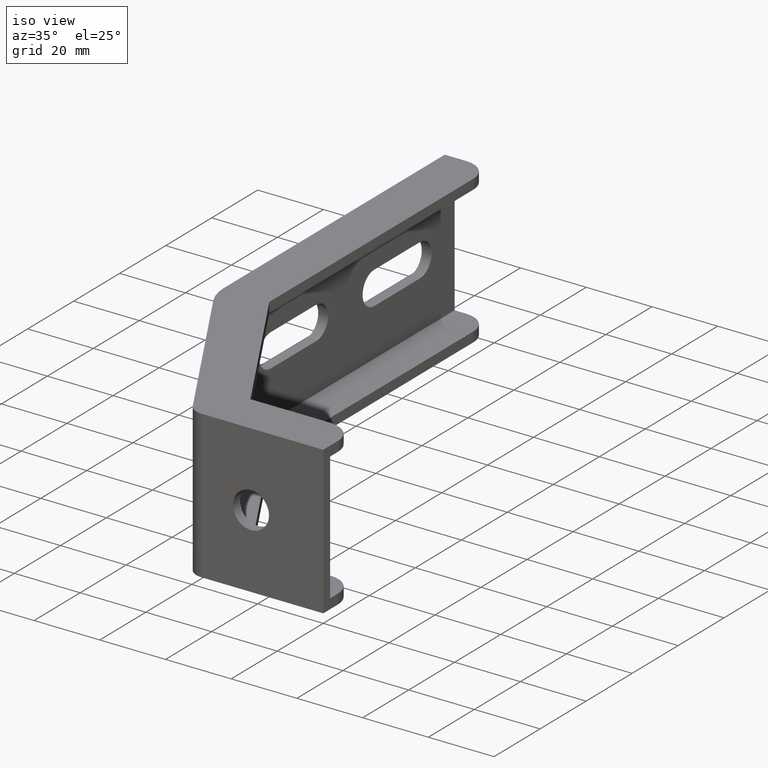
[diagram: clean part render]
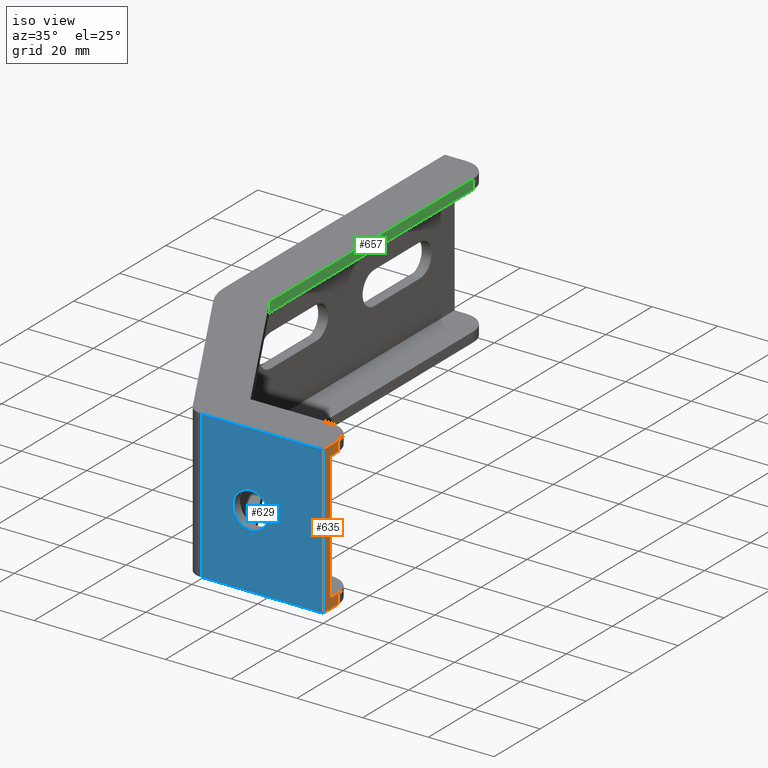
[diagram: same view with three faces highlighted in distinct colors, each labeled with its STEP entity id]
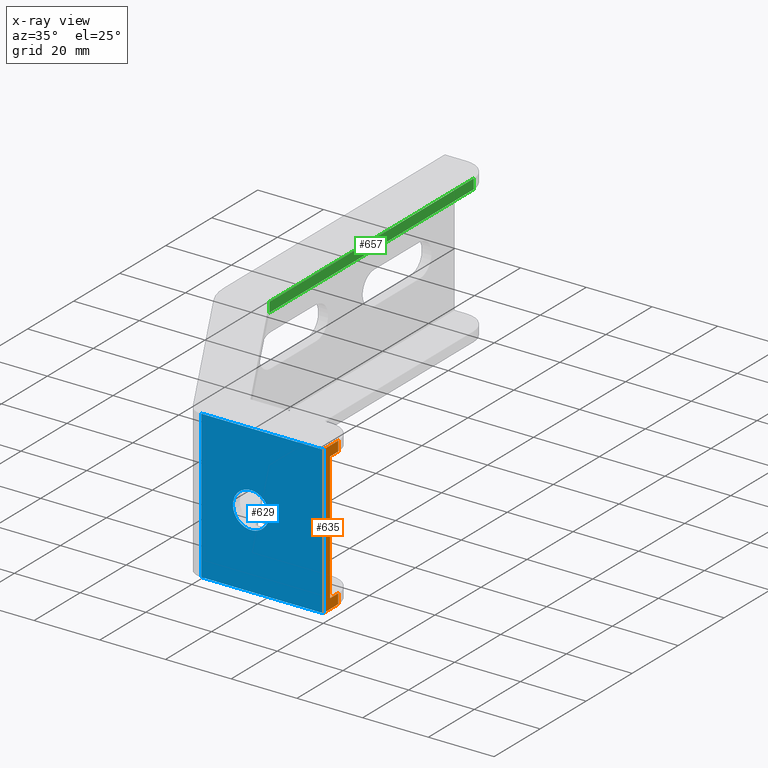
[diagram: x-ray of the same camera — body ghosted, the three highlighted faces saturated]
A machine part, iso view with three faces highlighted in distinct colors.
The next image is the same camera in x-ray (body ghosted, the three faces saturated) — at least one of them is partly hidden behind the body in this view.
Their STEP definitions:

[orange] entity #635 — the highlighted planar face has unit normal (1, 0, 0).
#26=PLANE('',#684);
#51=FACE_OUTER_BOUND('',#87,.T.);
#87=EDGE_LOOP('',(#486,#487,#488,#489,#490,#491,#492,#493));
#120=LINE('',#914,#190);
#128=LINE('',#937,#198);
#137=LINE('',#966,#207);
#144=LINE('',#984,#214);
#145=LINE('',#987,#215);
#146=LINE('',#989,#216);
#147=LINE('',#991,#217);
#148=LINE('',#992,#218);
#190=VECTOR('',#731,45.);
#198=VECTOR('',#749,6.5);
#207=VECTOR('',#774,6.5);
#214=VECTOR('',#789,3.);
#215=VECTOR('',#792,3.5);
#216=VECTOR('',#793,39.);
#217=VECTOR('',#794,3.5);
#218=VECTOR('',#795,3.);
#283=VERTEX_POINT('',#911);
#284=VERTEX_POINT('',#913);
#294=VERTEX_POINT('',#935);
#306=VERTEX_POINT('',#965);
#313=VERTEX_POINT('',#982);
#314=VERTEX_POINT('',#986);
#315=VERTEX_POINT('',#988);
#316=VERTEX_POINT('',#990);
#346=EDGE_CURVE('',#283,#284,#120,.T.);
#358=EDGE_CURVE('',#294,#283,#128,.T.);
#372=EDGE_CURVE('',#284,#306,#137,.T.);
#382=EDGE_CURVE('',#313,#294,#144,.T.);
#383=EDGE_CURVE('',#313,#314,#145,.T.);
#384=EDGE_CURVE('',#314,#315,#146,.T.);
#385=EDGE_CURVE('',#315,#316,#147,.T.);
#386=EDGE_CURVE('',#306,#316,#148,.T.);
#486=ORIENTED_EDGE('',*,*,#382,.F.);
#487=ORIENTED_EDGE('',*,*,#383,.T.);
#488=ORIENTED_EDGE('',*,*,#384,.T.);
#489=ORIENTED_EDGE('',*,*,#385,.T.);
#490=ORIENTED_EDGE('',*,*,#386,.F.);
#491=ORIENTED_EDGE('',*,*,#372,.F.);
#492=ORIENTED_EDGE('',*,*,#346,.F.);
#493=ORIENTED_EDGE('',*,*,#358,.F.);
#635=ADVANCED_FACE('',(#51),#26,.T.);
#684=AXIS2_PLACEMENT_3D('',#985,#790,#791);
#731=DIRECTION('',(0.,0.,1.));
#749=DIRECTION('',(0.,-1.,0.));
#774=DIRECTION('',(0.,1.,0.));
#789=DIRECTION('',(0.,0.,-1.));
#790=DIRECTION('center_axis',(1.,0.,0.));
#791=DIRECTION('ref_axis',(0.,1.,0.));
#792=DIRECTION('',(0.,-1.,0.));
#793=DIRECTION('',(0.,0.,1.));
#794=DIRECTION('',(0.,1.,0.));
#795=DIRECTION('',(0.,0.,-1.));
#911=CARTESIAN_POINT('',(0.,0.,-22.5));
#913=CARTESIAN_POINT('',(0.,0.,22.5));
#914=CARTESIAN_POINT('',(0.,0.,0.));
#935=CARTESIAN_POINT('',(0.,6.5,-22.5));
#937=CARTESIAN_POINT('',(0.,0.,-22.5));
#965=CARTESIAN_POINT('',(0.,6.5,22.5));
#966=CARTESIAN_POINT('',(0.,0.,22.5));
#982=CARTESIAN_POINT('',(0.,6.5,-19.5));
#984=CARTESIAN_POINT('',(0.,6.5,0.));
#985=CARTESIAN_POINT('Origin',(0.,0.,0.));
#986=CARTESIAN_POINT('',(0.,3.,-19.5));
#987=CARTESIAN_POINT('',(0.,7.,-19.5));
#988=CARTESIAN_POINT('',(0.,3.,19.5));
#989=CARTESIAN_POINT('',(0.,3.,-9.75));
#990=CARTESIAN_POINT('',(0.,6.5,19.5));
#991=CARTESIAN_POINT('',(0.,1.5,19.5));
#992=CARTESIAN_POINT('',(0.,6.5,0.));

[blue] entity #629 — the highlighted planar face has unit normal (0, -1, 0).
#15=FACE_BOUND('',#79,.T.);
#22=PLANE('',#666);
#45=FACE_OUTER_BOUND('',#78,.T.);
#78=EDGE_LOOP('',(#437,#438,#439,#440));
#79=EDGE_LOOP('',(#441));
#118=LINE('',#909,#188);
#119=LINE('',#912,#189);
#120=LINE('',#914,#190);
#121=LINE('',#915,#191);
#188=VECTOR('',#727,45.);
#189=VECTOR('',#730,37.1306756454978);
#190=VECTOR('',#731,45.);
#191=VECTOR('',#732,37.1306756454978);
#259=CIRCLE('',#667,5.5);
#279=VERTEX_POINT('',#902);
#282=VERTEX_POINT('',#907);
#283=VERTEX_POINT('',#911);
#284=VERTEX_POINT('',#913);
#285=VERTEX_POINT('',#916);
#344=EDGE_CURVE('',#282,#279,#118,.T.);
#345=EDGE_CURVE('',#283,#282,#119,.T.);
#346=EDGE_CURVE('',#283,#284,#120,.T.);
#347=EDGE_CURVE('',#279,#284,#121,.T.);
#348=EDGE_CURVE('',#285,#285,#259,.T.);
#437=ORIENTED_EDGE('',*,*,#344,.F.);
#438=ORIENTED_EDGE('',*,*,#345,.F.);
#439=ORIENTED_EDGE('',*,*,#346,.T.);
#440=ORIENTED_EDGE('',*,*,#347,.F.);
#441=ORIENTED_EDGE('',*,*,#348,.T.);
#629=ADVANCED_FACE('',(#45,#15),#22,.T.);
#666=AXIS2_PLACEMENT_3D('',#910,#728,#729);
#667=AXIS2_PLACEMENT_3D('',#917,#733,#734);
#727=DIRECTION('',(0.,0.,1.));
#728=DIRECTION('center_axis',(2.22044604925031E-16,-1.,0.));
#729=DIRECTION('ref_axis',(1.,2.22044604925031E-16,0.));
#730=DIRECTION('',(-1.,-2.22044604925031E-16,0.));
#731=DIRECTION('',(0.,0.,1.));
#732=DIRECTION('',(1.,2.22044604925031E-16,0.));
#733=DIRECTION('center_axis',(-2.22044604925031E-16,1.,0.));
#734=DIRECTION('ref_axis',(-1.,0.,1.16015598183047E-16));
#902=CARTESIAN_POINT('',(-37.1306756454978,-8.24466620430403E-15,22.5));
#907=CARTESIAN_POINT('',(-37.1306756454978,-8.24466620430403E-15,-22.5));
#909=CARTESIAN_POINT('',(-37.1306756454978,-8.32667268468867E-15,0.));
#910=CARTESIAN_POINT('Origin',(-40.,-8.88178419700125E-15,0.));
#911=CARTESIAN_POINT('',(0.,0.,-22.5));
#912=CARTESIAN_POINT('',(-40.,-8.88178419700125E-15,-22.5));
#913=CARTESIAN_POINT('',(0.,0.,22.5));
#914=CARTESIAN_POINT('',(0.,0.,0.));
#915=CARTESIAN_POINT('',(-40.,-8.88178419700125E-15,22.5));
#916=CARTESIAN_POINT('',(-16.5,-8.88178419700125E-15,9.0880451971251E-16));
#917=CARTESIAN_POINT('Origin',(-22.,-8.88178419700125E-15,2.22044604925031E-15));

[green] entity #657 — the highlighted planar face has unit normal (1, 0, 0).
#40=PLANE('',#714);
#73=FACE_OUTER_BOUND('',#113,.T.);
#113=EDGE_LOOP('',(#601,#602,#603,#604));
#140=LINE('',#974,#210);
#163=LINE('',#1029,#233);
#168=LINE('',#1037,#238);
#186=LINE('',#1084,#256);
#210=VECTOR('',#779,88.737945291368);
#233=VECTOR('',#824,88.737945291368);
#238=VECTOR('',#835,3.);
#256=VECTOR('',#893,3.);
#309=VERTEX_POINT('',#971);
#310=VERTEX_POINT('',#973);
#330=VERTEX_POINT('',#1026);
#331=VERTEX_POINT('',#1028);
#376=EDGE_CURVE('',#309,#310,#140,.T.);
#404=EDGE_CURVE('',#331,#330,#163,.T.);
#409=EDGE_CURVE('',#310,#330,#168,.T.);
#432=EDGE_CURVE('',#331,#309,#186,.T.);
#601=ORIENTED_EDGE('',*,*,#409,.F.);
#602=ORIENTED_EDGE('',*,*,#376,.F.);
#603=ORIENTED_EDGE('',*,*,#432,.F.);
#604=ORIENTED_EDGE('',*,*,#404,.T.);
#657=ADVANCED_FACE('',(#73),#40,.T.);
#714=AXIS2_PLACEMENT_3D('',#1083,#891,#892);
#779=DIRECTION('',(-3.69159344377561E-16,1.,0.));
#824=DIRECTION('',(-3.69159344377561E-16,1.,7.45180370697265E-32));
#835=DIRECTION('',(0.,0.,-1.));
#891=DIRECTION('center_axis',(1.,3.69159344377561E-16,0.));
#892=DIRECTION('ref_axis',(-7.105427357601E-16,1.,0.));
#893=DIRECTION('',(0.,0.,1.));
#971=CARTESIAN_POINT('',(-61.0444887501912,63.762054708632,22.5));
#973=CARTESIAN_POINT('',(-61.0444887501913,152.5,22.5));
#974=CARTESIAN_POINT('',(-61.0444887501912,63.762054708632,22.5));
#1026=CARTESIAN_POINT('',(-61.0444887501913,152.5,19.5));
#1028=CARTESIAN_POINT('',(-61.0444887501912,63.762054708632,19.5));
#1029=CARTESIAN_POINT('',(-61.0444887501913,111.881027354316,19.5));
#1037=CARTESIAN_POINT('',(-61.0444887501913,152.5,0.));
#1083=CARTESIAN_POINT('Origin',(-61.0444887501912,63.762054708632,0.));
#1084=CARTESIAN_POINT('',(-61.0444887501912,63.762054708632,0.));